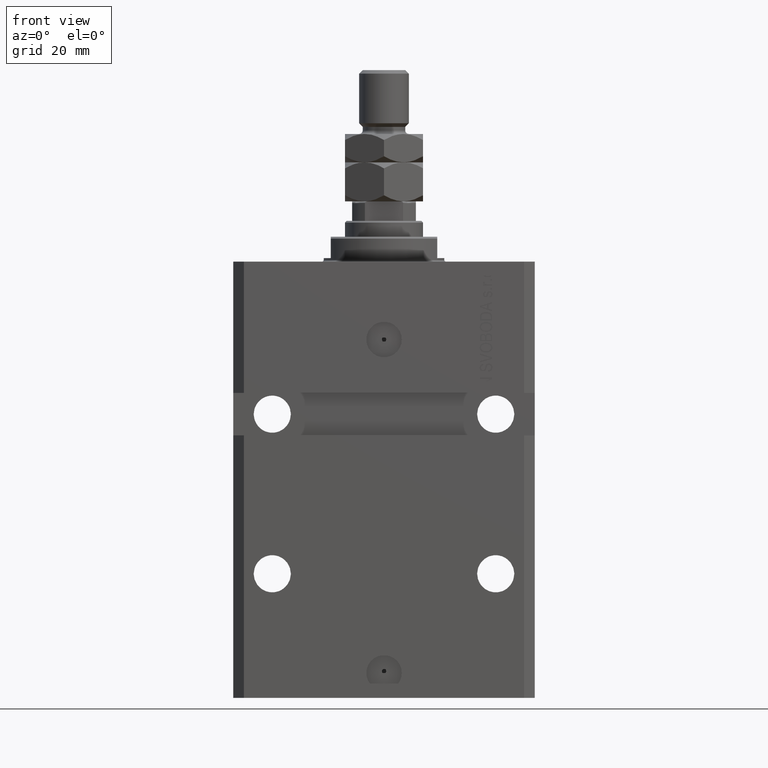
[diagram: clean part render]
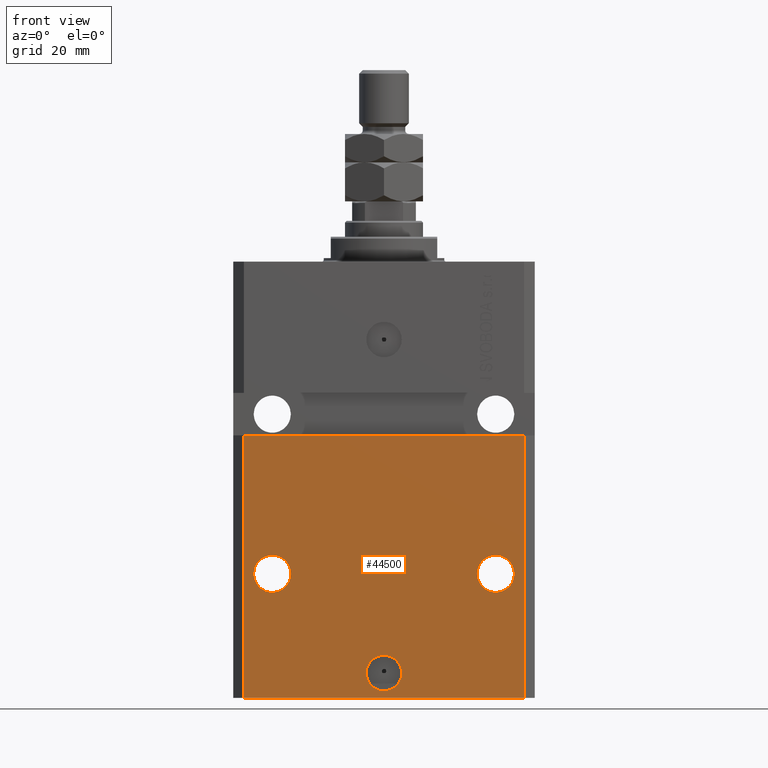
[diagram: same view with one face highlighted and labeled with its STEP entity id]
A machine part, front view. The second image highlights one B-rep face of the part: STEP entity #44500.
In plain terms, the highlighted planar face has unit normal (0, -1, 0).
Its self-contained STEP definition (entity closure, byte-faithful):
#78 = ORIENTED_EDGE ( 'NONE', *, *, #15009, .T. ) ;
#307 = EDGE_LOOP ( 'NONE', ( #24663, #44836 ) ) ;
#684 = CARTESIAN_POINT ( 'NONE',  ( -5.000000000000006217, -31.50000000000000000, -115.9999999999999858 ) ) ;
#2549 = CIRCLE ( 'NONE', #10162, 5.249999999999997335 ) ;
#2991 = CARTESIAN_POINT ( 'NONE',  ( -39.50000000000000711, -31.50000000000000000, -123.0000000000000000 ) ) ;
#4026 = AXIS2_PLACEMENT_3D ( 'NONE', #10816, #25303, #11057 ) ;
#4091 = CIRCLE ( 'NONE', #18552, 5.249999999999997335 ) ;
#4372 = CIRCLE ( 'NONE', #30924, 5.249999999999997335 ) ;
#4373 = DIRECTION ( 'NONE',  ( 0.000000000000000000, -0.000000000000000000, -1.000000000000000000 ) ) ;
#4592 = VERTEX_POINT ( 'NONE', #32460 ) ;
#5141 = LINE ( 'NONE', #17694, #38254 ) ;
#6176 = DIRECTION ( 'NONE',  ( 1.176083712526788232E-16, -1.000000000000000000, 0.000000000000000000 ) ) ;
#6253 = CIRCLE ( 'NONE', #21431, 5.000000000000006217 ) ;
#6423 = DIRECTION ( 'NONE',  ( 1.000000000000000000, 0.000000000000000000, 0.000000000000000000 ) ) ;
#6908 = CARTESIAN_POINT ( 'NONE',  ( 31.50000000000001421, -31.49999999999999289, -88.00000000000000000 ) ) ;
#8216 = EDGE_CURVE ( 'NONE', #24352, #35948, #4091, .T. ) ;
#10047 = VERTEX_POINT ( 'NONE', #41871 ) ;
#10162 = AXIS2_PLACEMENT_3D ( 'NONE', #21899, #19046, #29500 ) ;
#10479 = DIRECTION ( 'NONE',  ( 1.176083712526788232E-16, -1.000000000000000000, 0.000000000000000000 ) ) ;
#10816 = CARTESIAN_POINT ( 'NONE',  ( 0.000000000000000000, -31.50000000000000000, -115.9999999999999858 ) ) ;
#11057 = DIRECTION ( 'NONE',  ( 1.000000000000000000, 0.000000000000000000, 0.000000000000000000 ) ) ;
#11340 = EDGE_CURVE ( 'NONE', #35948, #24352, #2549, .T. ) ;
#12390 = CIRCLE ( 'NONE', #4026, 5.000000000000006217 ) ;
#12635 = AXIS2_PLACEMENT_3D ( 'NONE', #6908, #10479, #24497 ) ;
#12788 = LINE ( 'NONE', #23952, #35813 ) ;
#13345 = VERTEX_POINT ( 'NONE', #21961 ) ;
#13479 = CARTESIAN_POINT ( 'NONE',  ( -39.50000000000000711, -31.50000000000000000, -123.0000000000000000 ) ) ;
#14149 = CIRCLE ( 'NONE', #12635, 5.249999999999997335 ) ;
#14400 = DIRECTION ( 'NONE',  ( 1.000000000000000000, 0.000000000000000000, 0.000000000000000000 ) ) ;
#14518 = DIRECTION ( 'NONE',  ( 1.176083712526788232E-16, -1.000000000000000000, 0.000000000000000000 ) ) ;
#15009 = EDGE_CURVE ( 'NONE', #41791, #39126, #46919, .T. ) ;
#15511 = DIRECTION ( 'NONE',  ( 1.000000000000000000, 0.000000000000000000, 0.000000000000000000 ) ) ;
#17694 = CARTESIAN_POINT ( 'NONE',  ( -42.50000000000000000, -31.50000000000000711, -48.99999999999999289 ) ) ;
#18552 = AXIS2_PLACEMENT_3D ( 'NONE', #24973, #14518, #46813 ) ;
#19046 = DIRECTION ( 'NONE',  ( 1.176083712526788232E-16, -1.000000000000000000, 0.000000000000000000 ) ) ;
#19071 = CARTESIAN_POINT ( 'NONE',  ( 0.000000000000000000, -31.50000000000000000, -115.9999999999999858 ) ) ;
#19350 = FACE_OUTER_BOUND ( 'NONE', #38822, .T. ) ;
#19771 = ORIENTED_EDGE ( 'NONE', *, *, #30501, .F. ) ;
#20368 = EDGE_LOOP ( 'NONE', ( #39447, #33619 ) ) ;
#20652 = CARTESIAN_POINT ( 'NONE',  ( -39.50000000000000711, -31.50000000000000000, -123.0000000000000000 ) ) ;
#21320 = EDGE_CURVE ( 'NONE', #39126, #29157, #12788, .T. ) ;
#21431 = AXIS2_PLACEMENT_3D ( 'NONE', #19071, #33312, #15511 ) ;
#21678 = ORIENTED_EDGE ( 'NONE', *, *, #11340, .F. ) ;
#21899 = CARTESIAN_POINT ( 'NONE',  ( -31.50000000000001421, -31.50000000000000711, -88.00000000000000000 ) ) ;
#21961 = CARTESIAN_POINT ( 'NONE',  ( 5.000000000000006217, -31.50000000000000000, -115.9999999999999858 ) ) ;
#22414 = EDGE_CURVE ( 'NONE', #31093, #13345, #6253, .T. ) ;
#22670 = FACE_BOUND ( 'NONE', #20368, .T. ) ;
#23952 = CARTESIAN_POINT ( 'NONE',  ( 39.50000000000000711, -31.50000000000000000, -123.0000000000000000 ) ) ;
#24352 = VERTEX_POINT ( 'NONE', #42551 ) ;
#24497 = DIRECTION ( 'NONE',  ( 1.000000000000000000, 0.000000000000000000, 0.000000000000000000 ) ) ;
#24663 = ORIENTED_EDGE ( 'NONE', *, *, #43209, .F. ) ;
#24973 = CARTESIAN_POINT ( 'NONE',  ( -31.50000000000001421, -31.50000000000000711, -88.00000000000000000 ) ) ;
#25303 = DIRECTION ( 'NONE',  ( 1.176083712526788232E-16, -1.000000000000000000, 0.000000000000000000 ) ) ;
#28283 = AXIS2_PLACEMENT_3D ( 'NONE', #30260, #44725, #4373 ) ;
#28454 = EDGE_LOOP ( 'NONE', ( #21678, #39299 ) ) ;
#28973 = ORIENTED_EDGE ( 'NONE', *, *, #30194, .F. ) ;
#29157 = VERTEX_POINT ( 'NONE', #43722 ) ;
#29500 = DIRECTION ( 'NONE',  ( -1.000000000000000000, 0.000000000000000000, 0.000000000000000000 ) ) ;
#30194 = EDGE_CURVE ( 'NONE', #41791, #4592, #34673, .T. ) ;
#30260 = CARTESIAN_POINT ( 'NONE',  ( -39.50000000000000711, -31.50000000000000000, -123.0000000000000000 ) ) ;
#30501 = EDGE_CURVE ( 'NONE', #4592, #29157, #5141, .T. ) ;
#30924 = AXIS2_PLACEMENT_3D ( 'NONE', #42048, #6176, #6423 ) ;
#31093 = VERTEX_POINT ( 'NONE', #684 ) ;
#32182 = VECTOR ( 'NONE', #46278, 1000.000000000000000 ) ;
#32460 = CARTESIAN_POINT ( 'NONE',  ( -39.50000000000000000, -31.50000000000000711, -48.99999999999999289 ) ) ;
#33312 = DIRECTION ( 'NONE',  ( 1.176083712526788232E-16, -1.000000000000000000, 0.000000000000000000 ) ) ;
#33619 = ORIENTED_EDGE ( 'NONE', *, *, #22414, .F. ) ;
#34673 = LINE ( 'NONE', #20652, #32182 ) ;
#35381 = EDGE_CURVE ( 'NONE', #41396, #10047, #14149, .T. ) ;
#35813 = VECTOR ( 'NONE', #38190, 1000.000000000000000 ) ;
#35948 = VERTEX_POINT ( 'NONE', #43335 ) ;
#36436 = FACE_BOUND ( 'NONE', #28454, .T. ) ;
#36815 = CARTESIAN_POINT ( 'NONE',  ( 39.50000000000000711, -31.50000000000000000, -123.0000000000000000 ) ) ;
#38190 = DIRECTION ( 'NONE',  ( 0.000000000000000000, 0.000000000000000000, 1.000000000000000000 ) ) ;
#38254 = VECTOR ( 'NONE', #45948, 1000.000000000000000 ) ;
#38822 = EDGE_LOOP ( 'NONE', ( #19771, #28973, #78, #45158 ) ) ;
#39126 = VERTEX_POINT ( 'NONE', #36815 ) ;
#39299 = ORIENTED_EDGE ( 'NONE', *, *, #8216, .F. ) ;
#39447 = ORIENTED_EDGE ( 'NONE', *, *, #45918, .F. ) ;
#40618 = VECTOR ( 'NONE', #14400, 1000.000000000000000 ) ;
#41177 = FACE_BOUND ( 'NONE', #307, .T. ) ;
#41396 = VERTEX_POINT ( 'NONE', #42091 ) ;
#41791 = VERTEX_POINT ( 'NONE', #13479 ) ;
#41871 = CARTESIAN_POINT ( 'NONE',  ( 36.75000000000001421, -31.49999999999999289, -88.00000000000000000 ) ) ;
#42048 = CARTESIAN_POINT ( 'NONE',  ( 31.50000000000001421, -31.49999999999999289, -88.00000000000000000 ) ) ;
#42091 = CARTESIAN_POINT ( 'NONE',  ( 26.25000000000001776, -31.49999999999999289, -88.00000000000000000 ) ) ;
#42551 = CARTESIAN_POINT ( 'NONE',  ( -36.75000000000001421, -31.50000000000000711, -88.00000000000000000 ) ) ;
#43209 = EDGE_CURVE ( 'NONE', #10047, #41396, #4372, .T. ) ;
#43335 = CARTESIAN_POINT ( 'NONE',  ( -26.25000000000001776, -31.50000000000000711, -88.00000000000000000 ) ) ;
#43722 = CARTESIAN_POINT ( 'NONE',  ( 39.50000000000001421, -31.49999999999999289, -48.99999999999997868 ) ) ;
#44024 = PLANE ( 'NONE',  #28283 ) ;
#44500 = ADVANCED_FACE ( 'NONE', ( #22670, #41177, #36436, #19350 ), #44024, .T. ) ;
#44725 = DIRECTION ( 'NONE',  ( 0.000000000000000000, -1.000000000000000000, 0.000000000000000000 ) ) ;
#44836 = ORIENTED_EDGE ( 'NONE', *, *, #35381, .F. ) ;
#45158 = ORIENTED_EDGE ( 'NONE', *, *, #21320, .T. ) ;
#45918 = EDGE_CURVE ( 'NONE', #13345, #31093, #12390, .T. ) ;
#45948 = DIRECTION ( 'NONE',  ( 1.000000000000000000, 1.632680918566406300E-16, 1.632680918566406300E-16 ) ) ;
#46278 = DIRECTION ( 'NONE',  ( 0.000000000000000000, 0.000000000000000000, 1.000000000000000000 ) ) ;
#46813 = DIRECTION ( 'NONE',  ( -1.000000000000000000, 0.000000000000000000, 0.000000000000000000 ) ) ;
#46919 = LINE ( 'NONE', #2991, #40618 ) ;